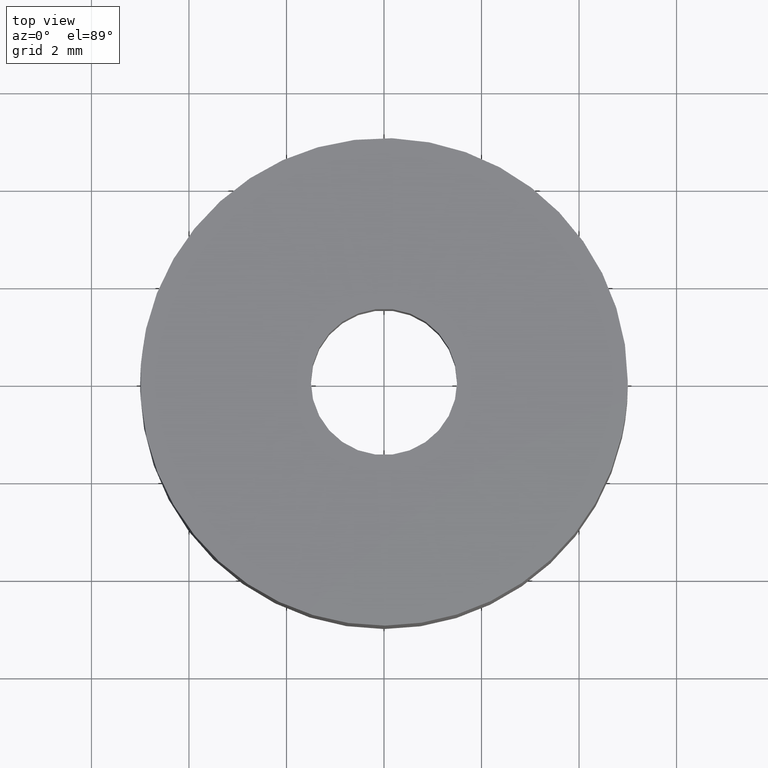
[diagram: clean part render]
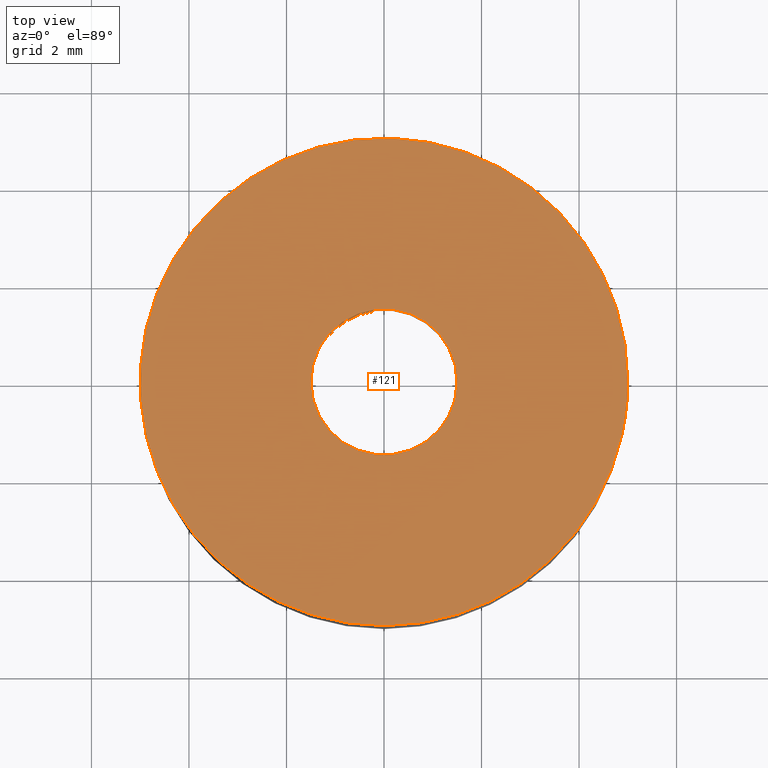
[diagram: same view with one face highlighted and labeled with its STEP entity id]
A machine part, top view. The second image highlights one B-rep face of the part: STEP entity #121.
In plain terms, the highlighted planar face has unit normal (0, 0, 1).
Its self-contained STEP definition (entity closure, byte-faithful):
#121=ADVANCED_FACE('',(#228,#229),#227,.T.);
#227=PLANE('',#391);
#228=FACE_OUTER_BOUND('',#392,.T.);
#229=FACE_BOUND('',#393,.T.);
#388=CARTESIAN_POINT('',(-1.15000000000E+001,-1.03923048454E+001,5.00000000000E+000));
#389=DIRECTION('',(0.00000000000E+000,0.00000000000E+000,1.00000000000E+000));
#390=DIRECTION('',(1.00000000000E+000,0.00000000000E+000,0.00000000000E+000));
#391=AXIS2_PLACEMENT_3D('',#388,#389,#390);
#392=EDGE_LOOP('',(#536,#537,#538));
#393=EDGE_LOOP('',(#539,#540,#541));
#536=ORIENTED_EDGE('',*,*,#636,.F.);
#537=ORIENTED_EDGE('',*,*,#637,.F.);
#538=ORIENTED_EDGE('',*,*,#638,.F.);
#539=ORIENTED_EDGE('',*,*,#639,.T.);
#540=ORIENTED_EDGE('',*,*,#640,.T.);
#541=ORIENTED_EDGE('',*,*,#641,.T.);
#636=EDGE_CURVE('',#894,#895,#896,.T.);
#637=EDGE_CURVE('',#902,#894,#903,.T.);
#638=EDGE_CURVE('',#895,#902,#909,.T.);
#639=EDGE_CURVE('',#915,#916,#917,.T.);
#640=EDGE_CURVE('',#916,#923,#924,.T.);
#641=EDGE_CURVE('',#923,#915,#930,.T.);
#894=VERTEX_POINT('',#1210);
#895=VERTEX_POINT('',#1211);
#896=CIRCLE('',#1215,5.00000000000E+000);
#902=VERTEX_POINT('',#1216);
#903=CIRCLE('',#1220,5.00000000000E+000);
#909=CIRCLE('',#1224,5.00000000000E+000);
#915=VERTEX_POINT('',#1225);
#916=VERTEX_POINT('',#1226);
#917=CIRCLE('',#1230,1.50000000000E+000);
#923=VERTEX_POINT('',#1231);
#924=CIRCLE('',#1235,1.50000000000E+000);
#930=CIRCLE('',#1239,1.50000000000E+000);
#1210=CARTESIAN_POINT('',(-4.87984431308E+000,1.08955012735E+000,5.00000000000E+000));
#1211=CARTESIAN_POINT('',(5.00000000000E+000,8.88178419700E-016,5.00000000000E+000));
#1212=CARTESIAN_POINT('',(1.60094160151E-012,-2.11741735257E-012,5.00000000000E+000));
#1213=DIRECTION('',(-4.01475910473E-016,-1.67760873158E-016,-1.00000000000E+000));
#1214=DIRECTION('',(1.00000000000E+000,4.23272528138E-013,-4.01475910474E-016));
#1215=AXIS2_PLACEMENT_3D('',#1212,#1213,#1214);
#1216=CARTESIAN_POINT('',(4.87963473175E+000,-1.09048836980E+000,5.00000000000E+000));
#1217=CARTESIAN_POINT('',(1.60094160151E-012,-2.11741735257E-012,5.00000000000E+000));
#1218=DIRECTION('',(-4.01475910473E-016,-1.67760873158E-016,-1.00000000000E+000));
#1219=DIRECTION('',(1.00000000000E+000,4.23272528138E-013,-4.01475910474E-016));
#1220=AXIS2_PLACEMENT_3D('',#1217,#1218,#1219);
#1221=CARTESIAN_POINT('',(1.60094160151E-012,-2.11741735257E-012,5.00000000000E+000));
#1222=DIRECTION('',(-4.01475910473E-016,-1.67760873158E-016,-1.00000000000E+000));
#1223=DIRECTION('',(1.00000000000E+000,4.23272528138E-013,-4.01475910474E-016));
#1224=AXIS2_PLACEMENT_3D('',#1221,#1222,#1223);
#1225=CARTESIAN_POINT('',(-1.50000000000E+000,-4.05735558466E-016,5.00000000000E+000));
#1226=CARTESIAN_POINT('',(-1.77308843490E-001,1.48948366020E+000,5.00000000000E+000));
#1227=CARTESIAN_POINT('',(1.50068846239E-012,-2.33923991289E-013,5.00000000000E+000));
#1228=DIRECTION('',(-1.77635683940E-015,6.28036983474E-016,-1.00000000000E+000));
#1229=DIRECTION('',(-1.00000000000E+000,1.55801297789E-013,1.77635683940E-015));
#1230=AXIS2_PLACEMENT_3D('',#1227,#1228,#1229);
#1231=CARTESIAN_POINT('',(1.77050807278E-001,-1.48951435429E+000,5.00000000000E+000));
#1232=CARTESIAN_POINT('',(1.50068846239E-012,-2.33923991289E-013,5.00000000000E+000));
#1233=DIRECTION('',(-1.77635683940E-015,6.28036983474E-016,-1.00000000000E+000));
#1234=DIRECTION('',(-1.00000000000E+000,1.55801297789E-013,1.77635683940E-015));
#1235=AXIS2_PLACEMENT_3D('',#1232,#1233,#1234);
#1236=CARTESIAN_POINT('',(1.50068846239E-012,-2.33923991289E-013,5.00000000000E+000));
#1237=DIRECTION('',(-1.77635683940E-015,6.28036983474E-016,-1.00000000000E+000));
#1238=DIRECTION('',(-1.00000000000E+000,1.55801297789E-013,1.77635683940E-015));
#1239=AXIS2_PLACEMENT_3D('',#1236,#1237,#1238);